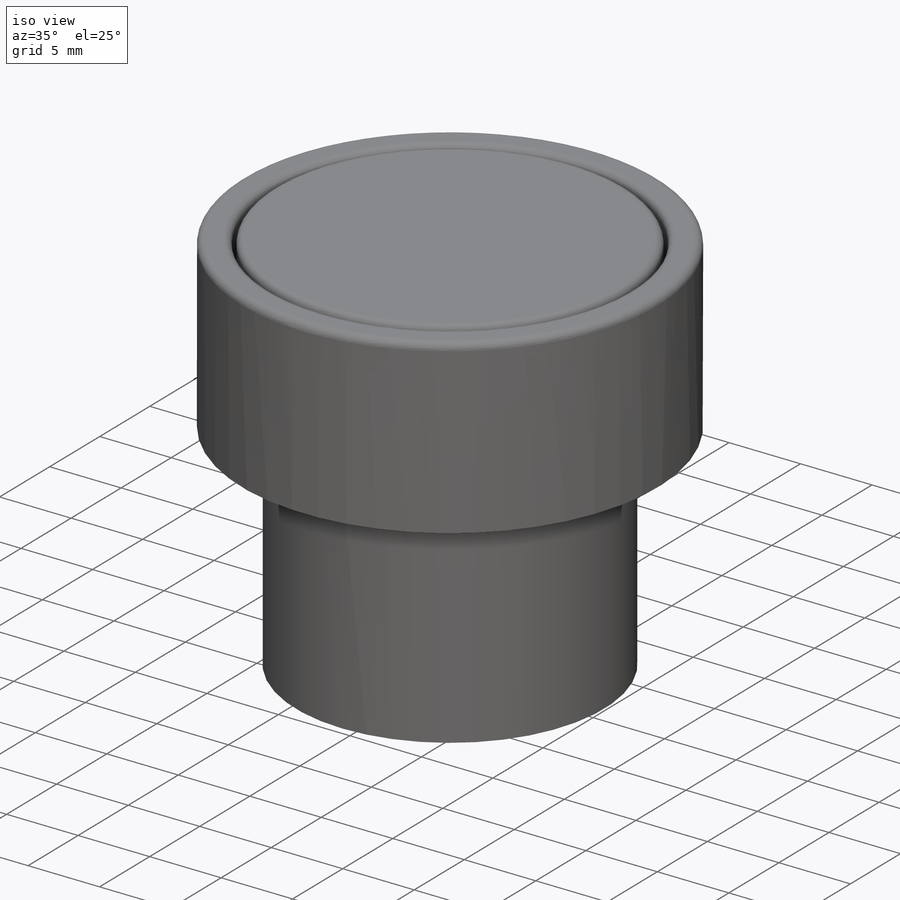
[diagram: iso view]
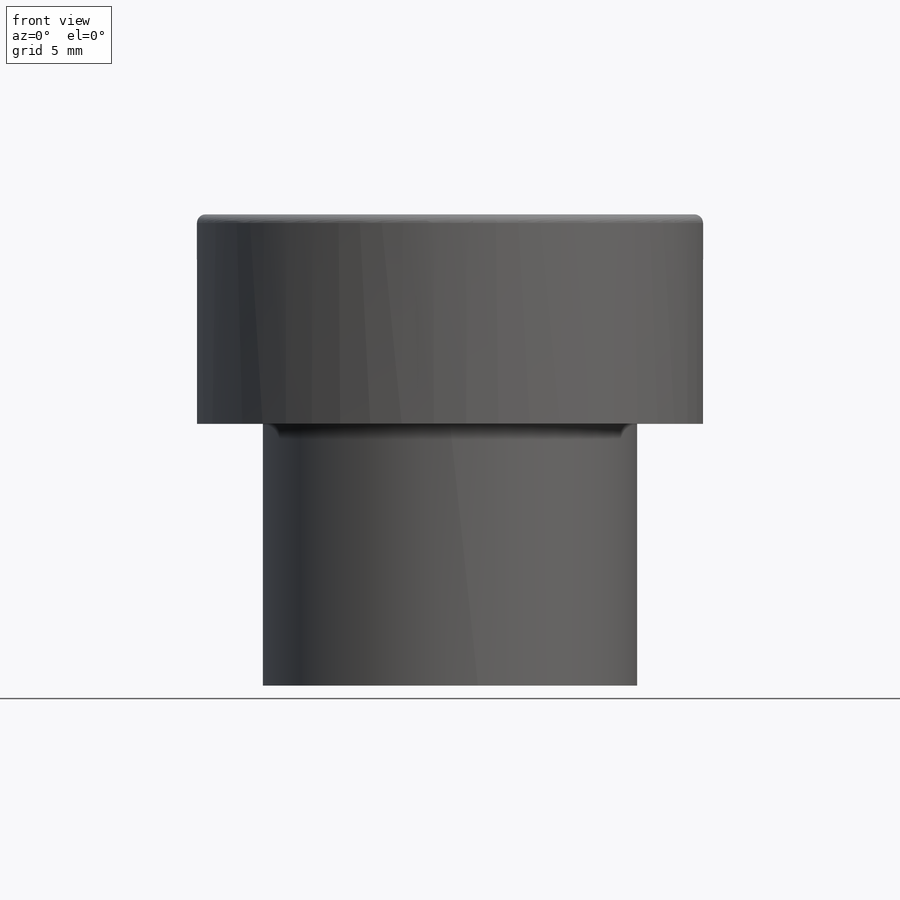
[diagram: front view]
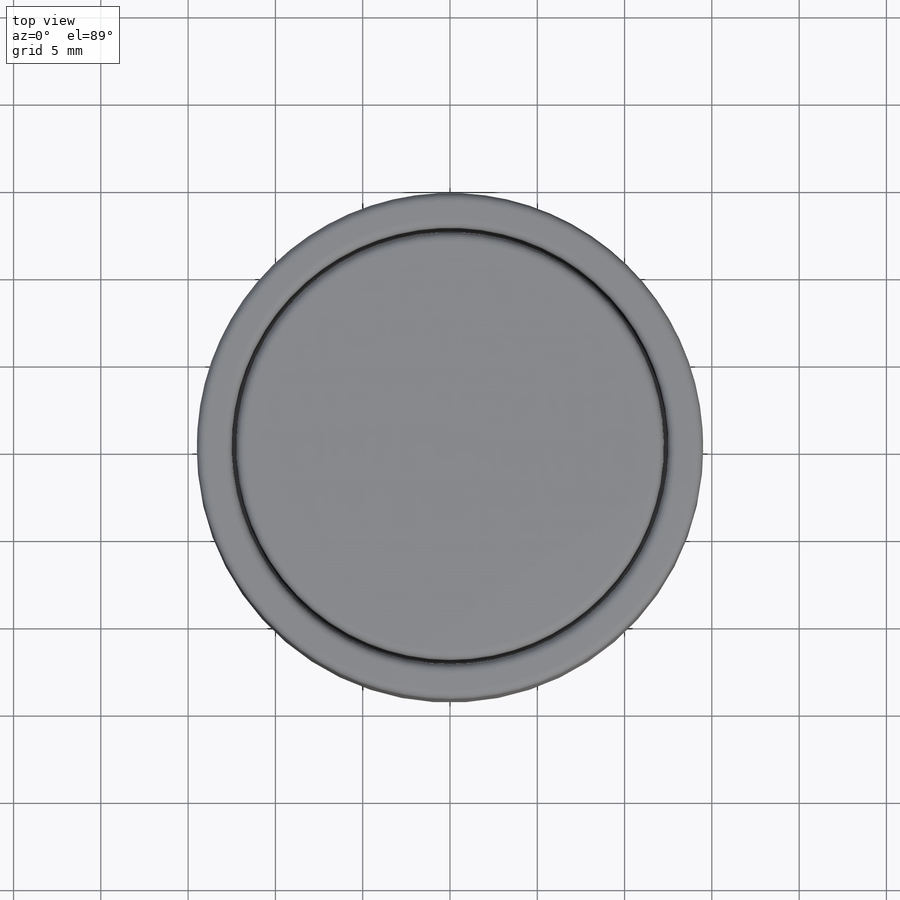
[diagram: top view]
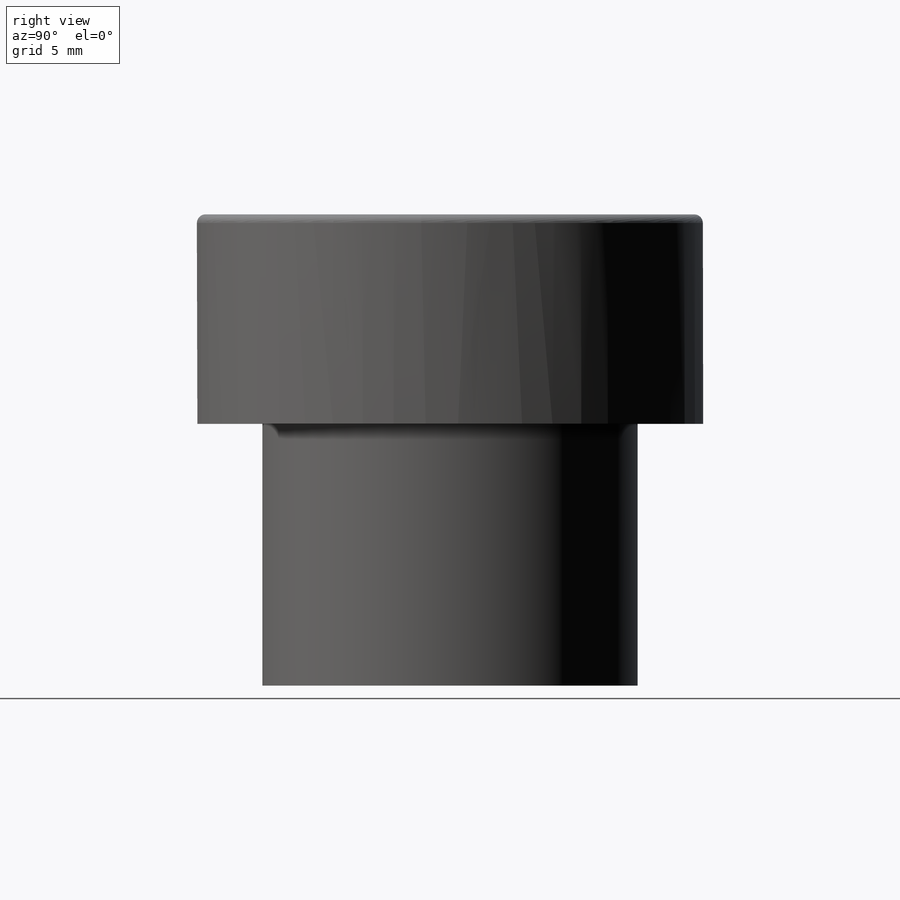
[diagram: right view]
SOLIDWORKS PART (.sldprt)
format: sldprt  version: not decoded by parser v0  size: 231,424 bytes
history: native  units: mm
features: sketch x4, extrude x4, material x1, fillet x1 (+13 scaffold rows collapsed)
feature tree (23):
  scaffold x13  (default folders/planes/origin — collapsed)
  material  "Material <not specified>"
  sketch  "Sketch1"  dims[D1=29.0mm D2=25.0mm]
  extrude  "Boss-Extrude1"  Depth=11mm
  sketch  "Sketch2"
  extrude  "Boss-Extrude2"  Depth=1mm
  sketch  "Sketch3"  dims[D1=21.5mm]
  extrude  "Boss-Extrude3"  Depth=15mm
  sketch  "Sketch4"  dims[D1=24.5mm]
  extrude  "Boss-Extrude4"  [1 undecoded]
  fillet  "Fillet1"  Radius=0.5mm
decode coverage: 7 of 9 modeling features carry decoded parameters
note: 1 parameter value undecoded
note: suppression state not decoded; provenance and decode notes live in map.json
